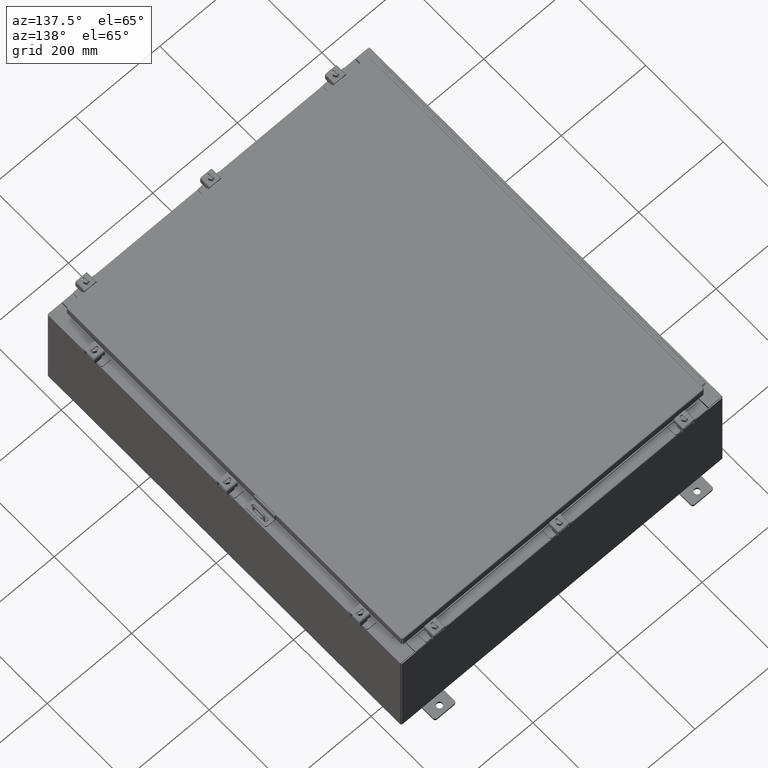
[diagram: clean part render]
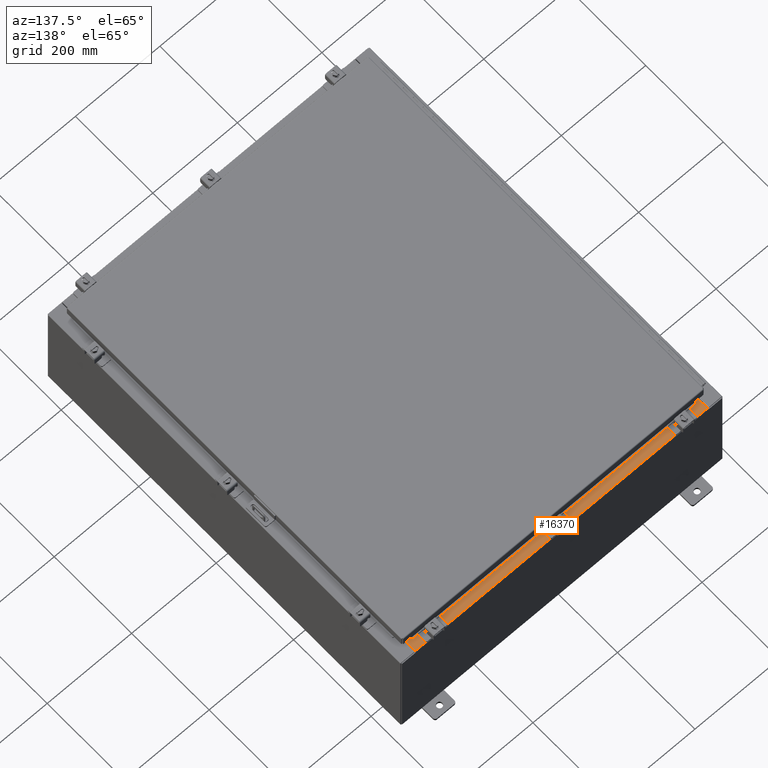
[diagram: same view with one face highlighted and labeled with its STEP entity id]
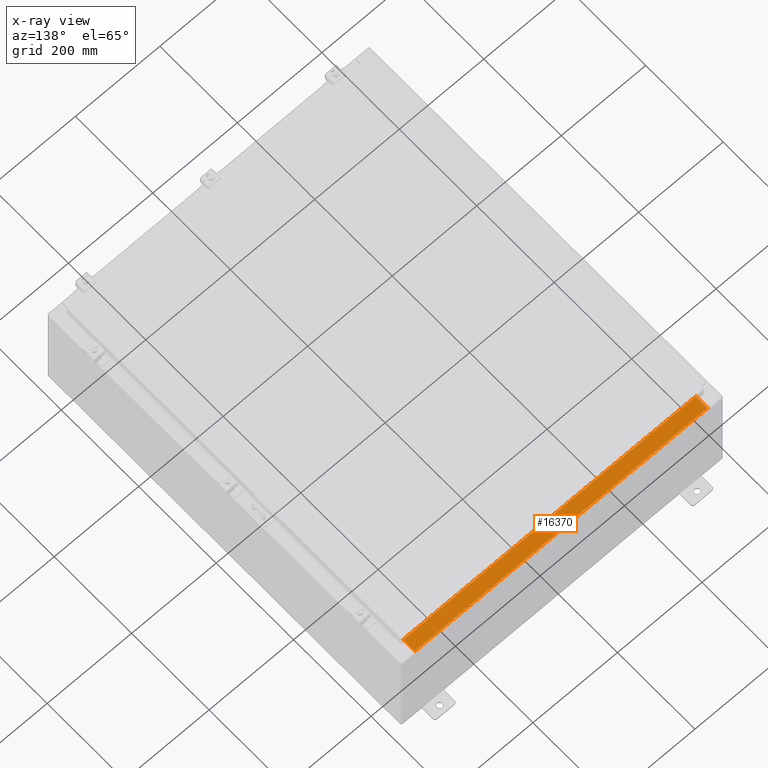
[diagram: x-ray of the same camera — body ghosted, the highlighted face saturated]
A machine part, auxiliary view. The second image highlights one B-rep face of the part: STEP entity #16370.
The next image is the same camera in x-ray: the body ghosted, the highlighted face saturated — about 0% of this face is hidden behind the body in this view.
In plain terms, the highlighted planar face has unit normal (0, 0, 1).
Its self-contained STEP definition (entity closure, byte-faithful):
#651 = VECTOR ( 'NONE', #37333, 39.37007874015748100 ) ;
#1394 = AXIS2_PLACEMENT_3D ( 'NONE', #29565, #29478, #29382 ) ;
#1755 = CARTESIAN_POINT ( 'NONE',  ( -13.63720000000000400, -1.287299999999999200, 5.000000000000004400 ) ) ;
#5553 = ORIENTED_EDGE ( 'NONE', *, *, #7744, .F. ) ;
#7744 = EDGE_CURVE ( 'NONE', #34152, #41452, #24185, .T. ) ;
#9459 = LINE ( 'NONE', #23888, #651 ) ;
#12789 = DIRECTION ( 'NONE',  ( -1.000000000000000000, -4.006464660875052000E-017, 1.428858021605520200E-031 ) ) ;
#13008 = EDGE_CURVE ( 'NONE', #34152, #18040, #38397, .T. ) ;
#13139 = CARTESIAN_POINT ( 'NONE',  ( 3.513669507588167300E-018, -0.08770000000000081900, 5.000000000000000000 ) ) ;
#16370 = ADVANCED_FACE ( 'NONE', ( #21926 ), #29624, .T. ) ;
#17274 = CARTESIAN_POINT ( 'NONE',  ( 13.63719999999999800, -0.08770000000000047200, 5.000000000000000000 ) ) ;
#18040 = VERTEX_POINT ( 'NONE', #37971 ) ;
#19611 = VECTOR ( 'NONE', #12789, 39.37007874015748100 ) ;
#19806 = DIRECTION ( 'NONE',  ( -0.0000000000000000000, -1.000000000000000000, 3.566381192773190000E-015 ) ) ;
#20811 = CARTESIAN_POINT ( 'NONE',  ( 13.63719999999999800, -1.300299999999999800, 5.000000000000004400 ) ) ;
#21135 = EDGE_CURVE ( 'NONE', #41452, #34989, #9459, .T. ) ;
#21926 = FACE_OUTER_BOUND ( 'NONE', #33807, .T. ) ;
#23888 = CARTESIAN_POINT ( 'NONE',  ( 13.63719999999999800, -1.287299999999999900, 5.000000000000002700 ) ) ;
#24185 = LINE ( 'NONE', #20811, #32036 ) ;
#25158 = ORIENTED_EDGE ( 'NONE', *, *, #35950, .F. ) ;
#27734 = LINE ( 'NONE', #34199, #35100 ) ;
#28665 = ORIENTED_EDGE ( 'NONE', *, *, #13008, .T. ) ;
#29027 = ORIENTED_EDGE ( 'NONE', *, *, #21135, .F. ) ;
#29382 = DIRECTION ( 'NONE',  ( 0.0000000000000000000, -1.000000000000000000, 3.566381192773190000E-015 ) ) ;
#29478 = DIRECTION ( 'NONE',  ( 0.0000000000000000000, 3.566381192773190000E-015, 1.000000000000000000 ) ) ;
#29565 = CARTESIAN_POINT ( 'NONE',  ( 0.0000000000000000000, 1.782631094477737600E-014, 5.000000000000000000 ) ) ;
#29624 = PLANE ( 'NONE',  #1394 ) ;
#32036 = VECTOR ( 'NONE', #19806, 39.37007874015748100 ) ;
#33640 = CARTESIAN_POINT ( 'NONE',  ( 13.63719999999999800, -1.287299999999999900, 5.000000000000004400 ) ) ;
#33807 = EDGE_LOOP ( 'NONE', ( #25158, #29027, #5553, #28665 ) ) ;
#34152 = VERTEX_POINT ( 'NONE', #17274 ) ;
#34199 = CARTESIAN_POINT ( 'NONE',  ( -13.63720000000000400, -0.07469999999999973900, 5.000000000000000000 ) ) ;
#34989 = VERTEX_POINT ( 'NONE', #1755 ) ;
#35100 = VECTOR ( 'NONE', #37548, 39.37007874015748100 ) ;
#35950 = EDGE_CURVE ( 'NONE', #34989, #18040, #27734, .T. ) ;
#37333 = DIRECTION ( 'NONE',  ( -1.000000000000000000, 0.0000000000000000000, 0.0000000000000000000 ) ) ;
#37548 = DIRECTION ( 'NONE',  ( -0.0000000000000000000, 1.000000000000000000, -3.566381192773190000E-015 ) ) ;
#37971 = CARTESIAN_POINT ( 'NONE',  ( -13.63720000000000400, -0.08770000000000081900, 5.000000000000000000 ) ) ;
#38397 = LINE ( 'NONE', #13139, #19611 ) ;
#41452 = VERTEX_POINT ( 'NONE', #33640 ) ;